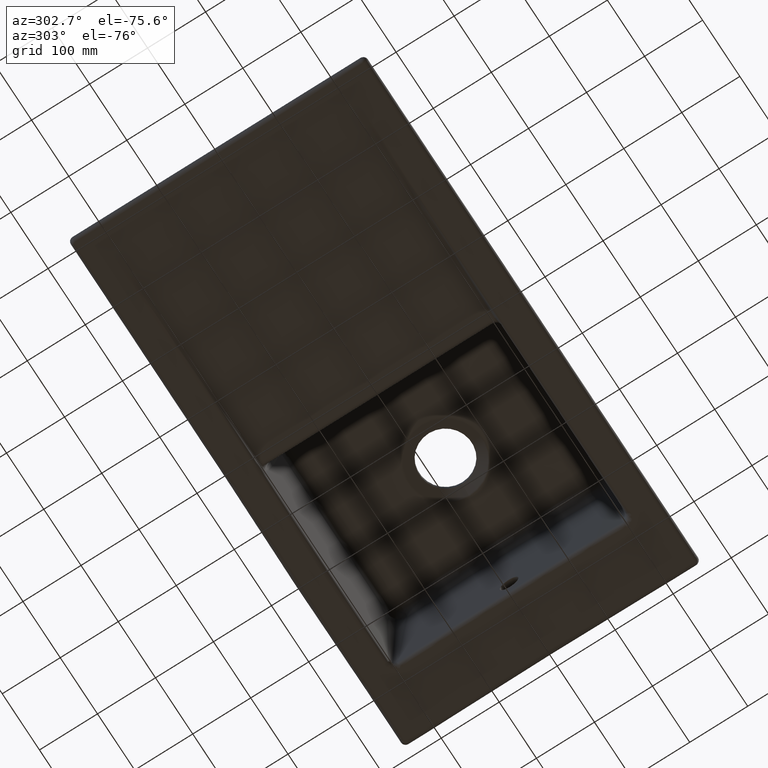
[diagram: clean part render]
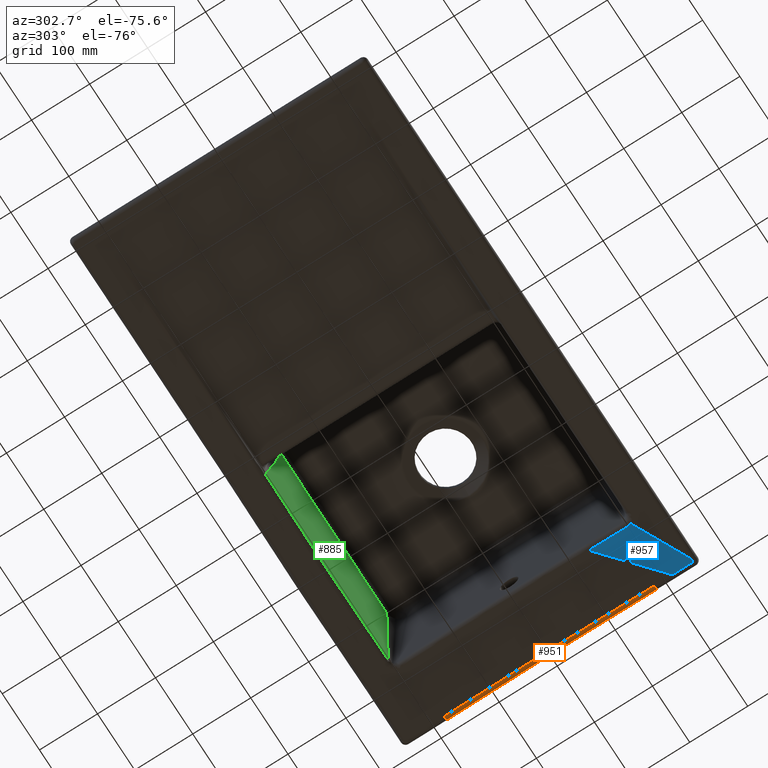
[diagram: same view with three faces highlighted in distinct colors, each labeled with its STEP entity id]
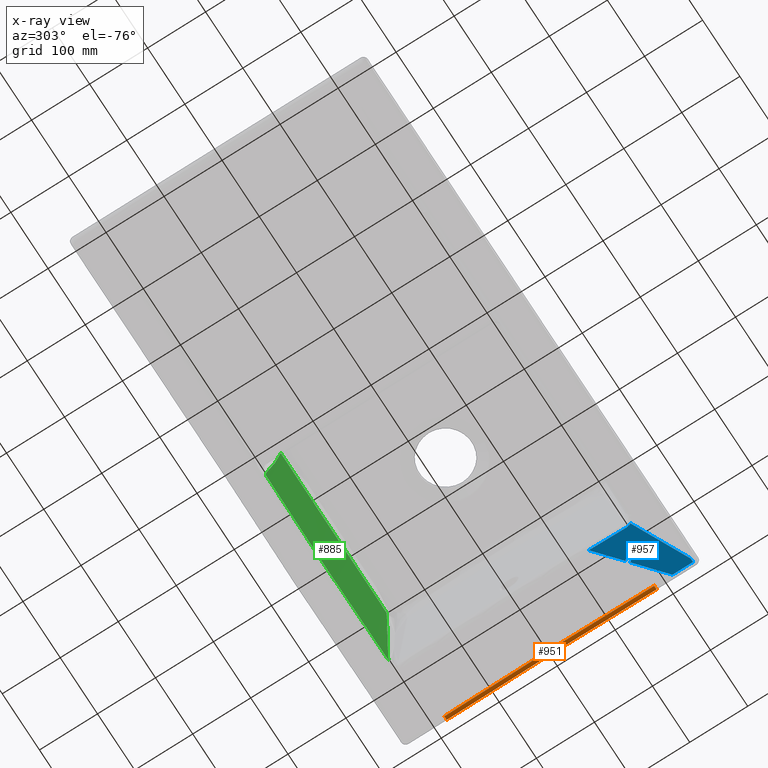
[diagram: x-ray of the same camera — body ghosted, the three highlighted faces saturated]
A machine part, auxiliary view with three faces highlighted in distinct colors.
The next image is the same camera in x-ray (body ghosted, the three faces saturated) — at least one of them is partly hidden behind the body in this view.
Their STEP definitions:

[orange] entity #951 — the highlighted face is a freeform B-spline surface patch.
#220=(
BOUNDED_SURFACE()
B_SPLINE_SURFACE(3,2,((#14011,#14012,#14013),(#14014,#14015,#14016),(#14017,
#14018,#14019),(#14020,#14021,#14022)),.UNSPECIFIED.,.F.,.F.,.F.)
B_SPLINE_SURFACE_WITH_KNOTS((4,4),(3,3),(0.,1.),(0.,1.),.UNSPECIFIED.)
GEOMETRIC_REPRESENTATION_ITEM()
RATIONAL_B_SPLINE_SURFACE(((1.,0.740368760613668,1.),(1.,0.740022202504938,
1.),(1.,0.739262238634342,1.),(1.,0.740366186470878,1.)))
REPRESENTATION_ITEM('')
SURFACE()
);
#951=ADVANCED_FACE('',(#1252),#220,.T.);
#1252=FACE_OUTER_BOUND('',#1534,.T.);
#1534=EDGE_LOOP('',(#2771,#2772,#2773,#2774));
#2771=ORIENTED_EDGE('',*,*,#3828,.F.);
#2772=ORIENTED_EDGE('',*,*,#3843,.T.);
#2773=ORIENTED_EDGE('',*,*,#3844,.F.);
#2774=ORIENTED_EDGE('',*,*,#3841,.F.);
#3203=VERTEX_POINT('',#13739);
#3204=VERTEX_POINT('',#13740);
#3211=VERTEX_POINT('',#13919);
#3212=VERTEX_POINT('',#13942);
#3828=EDGE_CURVE('',#3203,#3204,#4171,.T.);
#3841=EDGE_CURVE('',#3204,#3211,#4181,.T.);
#3843=EDGE_CURVE('',#3203,#3212,#4183,.T.);
#3844=EDGE_CURVE('',#3211,#3212,#4184,.T.);
#4171=B_SPLINE_CURVE_WITH_KNOTS('',3,(#13735,#13736,#13737,#13738),
 .UNSPECIFIED.,.F.,.F.,(4,4),(0.,1.),.UNSPECIFIED.);
#4181=B_SPLINE_CURVE_WITH_KNOTS('',3,(#13913,#13914,#13915,#13916,#13917,
#13918),.UNSPECIFIED.,.F.,.F.,(4,2,4),(0.,0.5,1.),.UNSPECIFIED.);
#4183=B_SPLINE_CURVE_WITH_KNOTS('',3,(#13936,#13937,#13938,#13939,#13940,
#13941),.UNSPECIFIED.,.F.,.F.,(4,2,4),(0.,0.5,1.),.UNSPECIFIED.);
#4184=B_SPLINE_CURVE_WITH_KNOTS('',3,(#13943,#13944,#13945,#13946,#13947,
#13948,#13949,#13950,#13951,#13952,#13953,#13954,#13955,#13956,#13957,#13958,
#13959,#13960,#13961,#13962,#13963,#13964,#13965,#13966,#13967,#13968,#13969,
#13970,#13971,#13972,#13973,#13974,#13975,#13976,#13977,#13978,#13979,#13980,
#13981,#13982,#13983,#13984,#13985,#13986,#13987,#13988,#13989,#13990,#13991,
#13992,#13993,#13994,#13995,#13996,#13997,#13998,#13999,#14000,#14001,#14002,
#14003,#14004,#14005,#14006,#14007,#14008,#14009,#14010),.UNSPECIFIED.,
 .F.,.F.,(4,2,2,1,1,1,1,2,2,2,1,1,1,2,2,2,1,1,1,1,1,2,2,2,2,1,1,1,1,1,2,
2,2,2,1,1,1,2,2,2,1,1,2,2,4),(0.,0.0624999999999981,0.0937499999999973,
0.109374999999997,0.117187499999997,0.121093749999997,0.123046874999997,
0.124023437499997,0.124999999999996,0.187499999999998,0.218749999999998,
0.234374999999999,0.242187499999999,0.246093749999999,0.249999999999999,
0.374999999999999,0.437499999999999,0.468749999999999,0.484374999999999,
0.4921875,0.49609375,0.498046875,0.5,0.625,0.6875,0.71875,0.734375,0.7421875,
0.74609375,0.748046875,0.7490234375,0.75,0.8125,0.843749999999999,0.859374999999999,
0.867187499999999,0.871093749999999,0.873046874999999,0.874999999999999,
0.906249999999999,0.921874999999999,0.929687499999999,0.933593749999999,
0.937499999999999,1.),.UNSPECIFIED.);
#13735=CARTESIAN_POINT('',(286.436388012912,-180.85584415988,7.22728999851359));
#13736=CARTESIAN_POINT('',(284.900206697677,-62.4726737667272,7.26942088201452));
#13737=CARTESIAN_POINT('',(284.843536206371,58.1181804278392,7.26940018537602));
#13738=CARTESIAN_POINT('',(286.436381507599,180.855845687406,7.22722790859812));
#13739=CARTESIAN_POINT('',(286.436255561577,-180.85584148583,7.22603024599582));
#13740=CARTESIAN_POINT('',(286.436254922544,180.855834322087,7.22602504132612));
#13913=CARTESIAN_POINT('',(286.436387511343,180.855805409223,7.22729001229604));
#13914=CARTESIAN_POINT('',(286.230911929114,180.857776536676,5.27224192035089));
#13915=CARTESIAN_POINT('',(285.274983903782,180.869517238858,3.40555645704874));
#13916=CARTESIAN_POINT('',(282.342570367425,180.906638168833,0.786907672548662));
#13917=CARTESIAN_POINT('',(280.380149044262,180.931840360437,0.0475036878816517));
#13918=CARTESIAN_POINT('',(278.414564921222,180.957352312807,0.063792874306785));
#13919=CARTESIAN_POINT('',(278.414568267907,180.957371278451,0.0637928418557141));
#13936=CARTESIAN_POINT('',(286.436388014437,-180.855844277342,7.22728999847175));
#13937=CARTESIAN_POINT('',(286.230912447147,-180.85781522884,5.27224207046015));
#13938=CARTESIAN_POINT('',(285.274984567246,-180.8695557564,3.40555675344717));
#13939=CARTESIAN_POINT('',(282.342571435193,-180.90667642846,0.786908007324678));
#13940=CARTESIAN_POINT('',(280.38015036431,-180.931878538066,0.0475039104058094));
#13941=CARTESIAN_POINT('',(278.414566403864,-180.957390476981,0.0637928525439383));
#13942=CARTESIAN_POINT('',(278.414563569222,-180.957371801252,0.0637928806793564));
#13943=CARTESIAN_POINT('',(278.414567067795,180.957391344472,0.0637928468254679));
#13944=CARTESIAN_POINT('',(278.295598836805,171.819699265149,0.0670467655585575));
#13945=CARTESIAN_POINT('',(278.195994994233,163.480472848046,0.0697702408964209));
#13946=CARTESIAN_POINT('',(278.069064753398,152.170666109597,0.0732383453987869));
#13947=CARTESIAN_POINT('',(278.030513495627,148.60056619399,0.074291124052038));
#13948=CARTESIAN_POINT('',(277.977619872106,143.54530879288,0.0757345478002498));
#13949=CARTESIAN_POINT('',(277.952407591094,141.092652924859,0.0764222914336501));
#13950=CARTESIAN_POINT('',(277.925012326805,138.362450946788,0.0771690577126338));
#13951=CARTESIAN_POINT('',(277.911802749246,137.030160630355,0.0775289949679666));
#13952=CARTESIAN_POINT('',(277.905317911914,136.372218534957,0.0777056581955583));
#13953=CARTESIAN_POINT('',(277.902564181631,136.092001192039,0.0777806686392748));
#13954=CARTESIAN_POINT('',(277.900734000858,135.905580265979,0.0778305201746267));
#13955=CARTESIAN_POINT('',(277.90010729668,135.841710049355,0.0778475903720827));
#13956=CARTESIAN_POINT('',(277.822430379929,127.914001083539,0.0799632444235996));
#13957=CARTESIAN_POINT('',(277.753701894664,120.241077621304,0.0818311571930291));
#13958=CARTESIAN_POINT('',(277.661297846308,108.931285933407,0.0843372119917748));
#13959=CARTESIAN_POINT('',(277.617768416813,103.326288115218,0.0855162755967197));
#13960=CARTESIAN_POINT('',(277.571459701967,96.874521131398,0.0867682045381377));
#13961=CARTESIAN_POINT('',(277.549399411027,93.6704961007411,0.0873639730657317));
#13962=CARTESIAN_POINT('',(277.540176790344,92.3020274490189,0.0876129082885348));
#13963=CARTESIAN_POINT('',(277.534079591514,91.3907562185324,0.0877774526482394));
#13964=CARTESIAN_POINT('',(277.531250004798,90.9649723236633,0.0878538011365197));
#13965=CARTESIAN_POINT('',(277.425949101326,74.9954316212354,0.0906944879080949));
#13966=CARTESIAN_POINT('',(277.350775056883,59.7115993003187,0.0927056534418544));
#13967=CARTESIAN_POINT('',(277.276022198091,37.090754304541,0.0946906754752292));
#13968=CARTESIAN_POINT('',(277.248148001478,25.8565556952222,0.095425253955026));
#13969=CARTESIAN_POINT('',(277.231735155456,12.8838492393069,0.095848643230462));
#13970=CARTESIAN_POINT('',(277.227490451921,6.43101746155797,0.0959540890986234));
#13971=CARTESIAN_POINT('',(277.226350406091,3.21298899314648,0.0959805166884712));
#13972=CARTESIAN_POINT('',(277.226024944857,1.60607249107669,0.0959871897653078));
#13973=CARTESIAN_POINT('',(277.225937758854,0.917843597906485,0.0959886516075324));
#13974=CARTESIAN_POINT('',(277.225891244419,0.459124259012515,0.0959893158836312));
#13975=CARTESIAN_POINT('',(277.225876355853,0.28025282623799,0.095989488028262));
#13976=CARTESIAN_POINT('',(277.224952214648,-17.9001182199949,0.0959912364779008));
#13977=CARTESIAN_POINT('',(277.259290941091,-34.392345131358,0.0950539986691641));
#13978=CARTESIAN_POINT('',(277.340599772674,-57.0138155402283,0.0928568710988572));
#13979=CARTESIAN_POINT('',(277.3727075093,-64.2015086773307,0.091991445200272));
#13980=CARTESIAN_POINT('',(277.425836340863,-74.4534564221397,0.0905607832634023));
#13981=CARTESIAN_POINT('',(277.453646163719,-79.4470336176692,0.0898122205473935));
#13982=CARTESIAN_POINT('',(277.487752927941,-85.041106476566,0.0888943589085475));
#13983=CARTESIAN_POINT('',(277.505159967956,-87.7801929862731,0.0884259184485677));
#13984=CARTESIAN_POINT('',(277.513944252697,-89.1352477736704,0.0881895218226186));
#13985=CARTESIAN_POINT('',(277.518355639713,-89.8091529304571,0.088070804276866));
#13986=CARTESIAN_POINT('',(277.520250257105,-90.0971932199173,0.088019816714858));
#13987=CARTESIAN_POINT('',(277.521514218176,-90.2890475878688,0.0879858011641192));
#13988=CARTESIAN_POINT('',(277.521882972995,-90.3449943108258,0.0879758772783397));
#13989=CARTESIAN_POINT('',(277.580157090214,-99.1621732504791,0.086407603925959));
#13990=CARTESIAN_POINT('',(277.641946611591,-107.273199001037,0.0847434382708441));
#13991=CARTESIAN_POINT('',(277.736638432996,-118.583215587331,0.0821897723736056));
#13992=CARTESIAN_POINT('',(277.768542934845,-122.210470410925,0.0813288175467035));
#13993=CARTESIAN_POINT('',(277.816388168091,-127.43715732894,0.0800366310015491));
#13994=CARTESIAN_POINT('',(277.840308468148,-129.996952231866,0.0793903336074792));
#13995=CARTESIAN_POINT('',(277.86810312324,-132.889657367603,0.0786388257557093));
#13996=CARTESIAN_POINT('',(277.881959267106,-134.312578051042,0.0782640436652711));
#13997=CARTESIAN_POINT('',(277.88788739716,-134.917379946402,0.0781036677238719));
#13998=CARTESIAN_POINT('',(277.891837059859,-135.319465360998,0.0779968089081834));
#13999=CARTESIAN_POINT('',(277.893255329309,-135.463656675258,0.0779584358438439));
#14000=CARTESIAN_POINT('',(277.936225900921,-139.819402109427,0.0767957035635238));
#14001=CARTESIAN_POINT('',(277.976822080326,-143.754133872825,0.0756958569591537));
#14002=CARTESIAN_POINT('',(278.037310563096,-149.408911981321,0.0740549449259007));
#14003=CARTESIAN_POINT('',(278.067454018651,-152.174471721234,0.0732366866406565));
#14004=CARTESIAN_POINT('',(278.102312943623,-155.292734452959,0.0722894585023436));
#14005=CARTESIAN_POINT('',(278.117172687222,-156.605939977315,0.0718854597036818));
#14006=CARTESIAN_POINT('',(278.127059940377,-157.476256160521,0.0716166024997033));
#14007=CARTESIAN_POINT('',(278.131638619632,-157.877804992838,0.0714920771717447));
#14008=CARTESIAN_POINT('',(278.221380911532,-165.715416952639,0.0690508998865024));
#14009=CARTESIAN_POINT('',(278.313303120779,-173.255725160012,0.0665431698637309));
#14010=CARTESIAN_POINT('',(278.414565984987,-180.957358618879,0.0637928639206817));
#14011=CARTESIAN_POINT('',(286.46471813411,183.026006393432,7.22651611569381));
#14012=CARTESIAN_POINT('',(285.705515800824,183.033397351867,0.0028887409232424));
#14013=CARTESIAN_POINT('',(278.442973600485,183.128793699306,0.0630184662418123));
#14014=CARTESIAN_POINT('',(284.871944078498,61.740318019095,7.26984634054429));
#14015=CARTESIAN_POINT('',(284.111632217547,61.6859778156038,0.0431812125488578));
#14016=CARTESIAN_POINT('',(276.845954232343,61.7746691814492,0.106376026884403));
#14017=CARTESIAN_POINT('',(284.862524960809,-59.5687956510438,7.27045432670167));
#14018=CARTESIAN_POINT('',(284.098930269786,-59.3900558040309,0.0278647736401944));
#14019=CARTESIAN_POINT('',(276.818956872441,-59.6019699618359,0.107129710524523));
#14020=CARTESIAN_POINT('',(286.436388014437,-180.855844277342,7.22728999847179));
#14021=CARTESIAN_POINT('',(285.677178824145,-180.863126722211,0.00360703709859165));
#14022=CARTESIAN_POINT('',(278.414566403864,-180.957390476981,0.0637928525439417));

[blue] entity #957 — the highlighted face is a freeform B-spline surface patch.
#226=(
BOUNDED_SURFACE()
B_SPLINE_SURFACE(2,3,((#14138,#14139,#14140,#14141,#14142),(#14143,#14144,
#14145,#14146,#14147),(#14148,#14149,#14150,#14151,#14152)),
 .UNSPECIFIED.,.F.,.F.,.F.)
B_SPLINE_SURFACE_WITH_KNOTS((3,3),(4,1,4),(0.,1.),(0.,0.774440646310953,
1.),.UNSPECIFIED.)
GEOMETRIC_REPRESENTATION_ITEM()
RATIONAL_B_SPLINE_SURFACE(((1.00001286545181,1.00001348020961,1.00001427401841,
1.0000150678272,1.00001521650069),(1.00001286545181,1.00001030752378,1.0000070045876,
1.00000370165142,1.00000308304017),(1.00001286545181,1.00000840391229,1.00000264292912,
0.999996881945948,0.999995802963854)))
REPRESENTATION_ITEM('')
SURFACE()
);
#290=(
BOUNDED_CURVE()
B_SPLINE_CURVE(1,(#14134,#14135),.UNSPECIFIED.,.F.,.F.)
B_SPLINE_CURVE_WITH_KNOTS((2,2),(0.,1.),.UNSPECIFIED.)
CURVE()
GEOMETRIC_REPRESENTATION_ITEM()
RATIONAL_B_SPLINE_CURVE((0.999999480833228,1.00001286545181))
REPRESENTATION_ITEM('')
);
#291=(
BOUNDED_CURVE()
B_SPLINE_CURVE(1,(#14136,#14137),.UNSPECIFIED.,.F.,.F.)
B_SPLINE_CURVE_WITH_KNOTS((2,2),(0.,1.),.UNSPECIFIED.)
CURVE()
GEOMETRIC_REPRESENTATION_ITEM()
RATIONAL_B_SPLINE_CURVE((0.999999480833228,1.00001286545181))
REPRESENTATION_ITEM('')
);
#957=ADVANCED_FACE('',(#1258),#226,.F.);
#1258=FACE_OUTER_BOUND('',#1540,.T.);
#1540=EDGE_LOOP('',(#2795,#2796,#2797,#2798,#2799,#2800,#2801,#2802,#2803));
#2795=ORIENTED_EDGE('',*,*,#3853,.T.);
#2796=ORIENTED_EDGE('',*,*,#3850,.T.);
#2797=ORIENTED_EDGE('',*,*,#3851,.T.);
#2798=ORIENTED_EDGE('',*,*,#3818,.T.);
#2799=ORIENTED_EDGE('',*,*,#3819,.T.);
#2800=ORIENTED_EDGE('',*,*,#3821,.T.);
#2801=ORIENTED_EDGE('',*,*,#3822,.T.);
#2802=ORIENTED_EDGE('',*,*,#3854,.T.);
#2803=ORIENTED_EDGE('',*,*,#3223,.T.);
#2837=VERTEX_POINT('',#5151);
#2838=VERTEX_POINT('',#5152);
#3176=VERTEX_POINT('',#13069);
#3178=VERTEX_POINT('',#13155);
#3193=VERTEX_POINT('',#13333);
#3198=VERTEX_POINT('',#13544);
#3199=VERTEX_POINT('',#13636);
#3214=VERTEX_POINT('',#14052);
#3215=VERTEX_POINT('',#14085);
#3223=EDGE_CURVE('',#2838,#2837,#3866,.T.);
#3818=EDGE_CURVE('',#3193,#3176,#4164,.T.);
#3819=EDGE_CURVE('',#3176,#3178,#4165,.T.);
#3821=EDGE_CURVE('',#3178,#3199,#4166,.T.);
#3822=EDGE_CURVE('',#3199,#3198,#4167,.T.);
#3850=EDGE_CURVE('',#3214,#3215,#4189,.T.);
#3851=EDGE_CURVE('',#3215,#3193,#4190,.T.);
#3853=EDGE_CURVE('',#2837,#3214,#290,.T.);
#3854=EDGE_CURVE('',#3198,#2838,#291,.T.);
#3866=B_SPLINE_CURVE_WITH_KNOTS('',3,(#5153,#5154,#5155,#5156,#5157,#5158,
#5159,#5160,#5161,#5162),.UNSPECIFIED.,.F.,.F.,(4,2,2,2,4),(0.,0.25,0.5,
0.75,1.),.UNSPECIFIED.);
#4164=B_SPLINE_CURVE_WITH_KNOTS('',3,(#13561,#13562,#13563,#13564),
 .UNSPECIFIED.,.F.,.F.,(4,4),(0.,1.),.UNSPECIFIED.);
#4165=B_SPLINE_CURVE_WITH_KNOTS('',3,(#13577,#13578,#13579,#13580,#13581,
#13582,#13583,#13584,#13585,#13586,#13587,#13588,#13589,#13590,#13591,#13592,
#13593,#13594,#13595,#13596,#13597,#13598,#13599,#13600,#13601,#13602,#13603,
#13604,#13605,#13606,#13607,#13608,#13609,#13610,#13611,#13612,#13613,#13614,
#13615,#13616),.UNSPECIFIED.,.F.,.F.,(4,2,1,1,2,2,2,1,1,2,2,2,2,1,1,1,1,
2,2,2,1,1,1,1,2,4),(0.,0.062499999999994,0.093749999999991,0.10937499999999,
0.117187499999989,0.124999999999988,0.187499999999986,0.218749999999984,
0.234374999999985,0.242187499999984,0.249999999999983,0.499999999999967,
0.503906249999967,0.507812499999967,0.515624999999967,0.531249999999968,
0.562499999999969,0.624999999999972,0.749999999999978,0.753906249999978,
0.757812499999978,0.765624999999979,0.781249999999981,0.812499999999983,
0.874999999999989,1.),.UNSPECIFIED.);
#4166=B_SPLINE_CURVE_WITH_KNOTS('',3,(#13637,#13638,#13639,#13640),
 .UNSPECIFIED.,.F.,.F.,(4,4),(0.,1.),.UNSPECIFIED.);
#4167=B_SPLINE_CURVE_WITH_KNOTS('',3,(#13653,#13654,#13655,#13656),
 .UNSPECIFIED.,.F.,.F.,(4,4),(0.,1.),.UNSPECIFIED.);
#4189=B_SPLINE_CURVE_WITH_KNOTS('',3,(#14086,#14087,#14088,#14089),
 .UNSPECIFIED.,.F.,.F.,(4,4),(0.,1.),.UNSPECIFIED.);
#4190=B_SPLINE_CURVE_WITH_KNOTS('',3,(#14102,#14103,#14104,#14105),
 .UNSPECIFIED.,.F.,.F.,(4,4),(0.,1.),.UNSPECIFIED.);
#5151=CARTESIAN_POINT('',(229.97343340318,-170.460255885864,0.322055655296264));
#5152=CARTESIAN_POINT('',(224.930220298799,-166.145707815258,0.350614160647331));
#5153=CARTESIAN_POINT('',(224.930220155191,-166.145707447061,0.350532056431195));
#5154=CARTESIAN_POINT('',(223.503647066353,-166.541660560797,0.351807081941556));
#5155=CARTESIAN_POINT('',(222.413576553851,-167.695867167542,0.348526771763654));
#5156=CARTESIAN_POINT('',(221.775918494402,-170.573233528996,0.336143280056607));
#5157=CARTESIAN_POINT('',(222.266880852178,-172.070889839357,0.328260917529792));
#5158=CARTESIAN_POINT('',(224.534209697896,-174.009516440775,0.316022439434166));
#5159=CARTESIAN_POINT('',(226.086461581195,-174.263010602824,0.31274890796317));
#5160=CARTESIAN_POINT('',(228.835826011516,-173.184152294917,0.312776554719401));
#5161=CARTESIAN_POINT('',(229.802511194653,-171.935841020377,0.315982289288191));
#5162=CARTESIAN_POINT('',(229.973432579468,-170.460253773939,0.32158471739489));
#13069=CARTESIAN_POINT('',(272.712838008443,-247.779131762163,0.00284704276783208));
#13155=CARTESIAN_POINT('',(181.006154954054,-202.543964661022,0.0503232016702477));
#13333=CARTESIAN_POINT('',(278.801958400679,-247.79227601297,0.0051005978130318));
#13544=CARTESIAN_POINT('',(182.373092235017,-129.737475494442,0.594802969373201));
#13561=CARTESIAN_POINT('',(278.796550105754,-247.787267647399,0.00510059781285909));
#13562=CARTESIAN_POINT('',(276.830288755962,-247.784649473116,0.00528894952284771));
#13563=CARTESIAN_POINT('',(274.802384589339,-247.781934416632,0.00455093745285283));
#13564=CARTESIAN_POINT('',(272.712837969162,-247.779131609114,0.0028472564628451));
#13577=CARTESIAN_POINT('',(272.712837839289,-247.7791320494,0.00284725536961098));
#13578=CARTESIAN_POINT('',(270.999742094982,-246.869113936816,0.00348527094014252));
#13579=CARTESIAN_POINT('',(269.208668247256,-245.924827060826,0.00422736856679205));
#13580=CARTESIAN_POINT('',(266.405090280166,-244.457640283575,0.00548494496116881));
#13581=CARTESIAN_POINT('',(264.974059497575,-243.711362679553,0.00614975915282222));
#13582=CARTESIAN_POINT('',(263.25335042594,-242.818701320439,0.00698500355822254));
#13583=CARTESIAN_POINT('',(262.504938002943,-242.431440998257,0.0073553218178196));
#13584=CARTESIAN_POINT('',(262.003559570147,-242.172227725147,0.0076048982553914));
#13585=CARTESIAN_POINT('',(261.717209951177,-242.024324806086,0.00774837861412073));
#13586=CARTESIAN_POINT('',(259.749054279014,-241.008508319626,0.00873943961382332));
#13587=CARTESIAN_POINT('',(257.92474686792,-240.07235766652,0.00969159873810021));
#13588=CARTESIAN_POINT('',(255.076032177632,-238.618842733124,0.0112176626519517));
#13589=CARTESIAN_POINT('',(253.623611439012,-237.879766173032,0.012005098040362));
#13590=CARTESIAN_POINT('',(251.880009633945,-236.99609765831,0.0129639518682251));
#13591=CARTESIAN_POINT('',(251.122227943397,-236.612811933595,0.0133831926773011));
#13592=CARTESIAN_POINT('',(250.614701533177,-236.356274447553,0.0136644967561952));
#13593=CARTESIAN_POINT('',(250.311225181193,-236.202993711553,0.0138330541772036));
#13594=CARTESIAN_POINT('',(243.461814021582,-232.745379491157,0.0176427112819612));
#13595=CARTESIAN_POINT('',(235.751813964907,-228.911384950629,0.0221023323328143));
#13596=CARTESIAN_POINT('',(226.8365085093,-224.548863013273,0.0270654364520088));
#13597=CARTESIAN_POINT('',(226.761398322685,-224.512118432145,0.0271072224682039));
#13598=CARTESIAN_POINT('',(226.548402971007,-224.407929786817,0.0272256849736417));
#13599=CARTESIAN_POINT('',(226.228183313213,-224.25131850582,0.0274036991928556));
#13600=CARTESIAN_POINT('',(225.475917699773,-223.883594718392,0.0278212965314016));
#13601=CARTESIAN_POINT('',(223.951040825467,-223.138963232467,0.0286653128853042));
#13602=CARTESIAN_POINT('',(220.819904489255,-221.613014376071,0.0303877821896804));
#13603=CARTESIAN_POINT('',(217.996560344024,-220.242346346716,0.0319201738173278));
#13604=CARTESIAN_POINT('',(212.163854745498,-217.417961080684,0.0350499253298883));
#13605=CARTESIAN_POINT('',(208.027361265641,-215.424271467518,0.0372236323878557));
#13606=CARTESIAN_POINT('',(203.505828665803,-213.256030787325,0.0395213404512524));
#13607=CARTESIAN_POINT('',(203.43675668279,-213.222913909963,0.0395564001453854));
#13608=CARTESIAN_POINT('',(203.22996684606,-213.123773336021,0.0396613211989359));
#13609=CARTESIAN_POINT('',(202.919080256167,-212.974743009138,0.0398189362489592));
#13610=CARTESIAN_POINT('',(202.188765369547,-212.624769852996,0.0401883298278973));
#13611=CARTESIAN_POINT('',(200.708484222598,-211.915884987907,0.0409335429581296));
#13612=CARTESIAN_POINT('',(197.669316437499,-210.462397006945,0.0424490573629313));
#13613=CARTESIAN_POINT('',(194.929563221007,-209.155446136241,0.0437888987240958));
#13614=CARTESIAN_POINT('',(189.270387150851,-206.46045926,0.0465163895415547));
#13615=CARTESIAN_POINT('',(185.258043584881,-204.555670222817,0.0483987653946823));
#13616=CARTESIAN_POINT('',(181.006140637454,-202.543994347162,0.0503238391488715));
#13636=CARTESIAN_POINT('',(183.182227813901,-193.489400402598,0.139139447473305));
#13637=CARTESIAN_POINT('',(181.006165974876,-202.543944688828,0.0503243970707983));
#13638=CARTESIAN_POINT('',(182.48457541006,-199.768801865221,0.0817482779655459));
#13639=CARTESIAN_POINT('',(183.22993258513,-196.649696743827,0.111913951206289));
#13640=CARTESIAN_POINT('',(183.182227813606,-193.489400402603,0.139139447472317));
#13653=CARTESIAN_POINT('',(183.182227814195,-193.489400402594,0.139139447474294));
#13654=CARTESIAN_POINT('',(182.860902813528,-172.202594861889,0.32252220089136));
#13655=CARTESIAN_POINT('',(182.591140541423,-150.934628953025,0.474596736971396));
#13656=CARTESIAN_POINT('',(182.372944386223,-129.737495950881,0.594803794924173));
#14052=CARTESIAN_POINT('',(278.751786153054,-212.191022109684,0.041603675018802));
#14085=CARTESIAN_POINT('',(278.765837805172,-218.384894655067,0.036402029324253));
#14086=CARTESIAN_POINT('',(278.750980014156,-212.190200961048,0.04160836816271));
#14087=CARTESIAN_POINT('',(278.759065331057,-214.255092670345,0.0399385027137276));
#14088=CARTESIAN_POINT('',(278.764017935288,-216.319791730337,0.0382053415266355));
#14089=CARTESIAN_POINT('',(278.76583781093,-218.384894654341,0.0364020292998615));
#14102=CARTESIAN_POINT('',(278.765837782109,-218.384894654402,0.0364020294249906));
#14103=CARTESIAN_POINT('',(278.774481493524,-228.193418417015,0.0278369210780625));
#14104=CARTESIAN_POINT('',(278.784718894352,-237.994692212547,0.0173858062714853));
#14105=CARTESIAN_POINT('',(278.796550105755,-247.787267647399,0.00510059781285898));
#14134=CARTESIAN_POINT('',(174.49999999999,-123.001873154681,0.639994517596011));
#14135=CARTESIAN_POINT('',(286.000000002102,-218.391849817223,0.));
#14136=CARTESIAN_POINT('',(174.49999999999,-123.001873154681,0.639994517596011));
#14137=CARTESIAN_POINT('',(286.000000002102,-218.391849817223,0.));
#14138=CARTESIAN_POINT('',(286.000000002103,-255.,0.));
#14139=CARTESIAN_POINT('',(248.833287638352,-238.333312841681,0.));
#14140=CARTESIAN_POINT('',(200.841669184759,-216.812407705945,0.));
#14141=CARTESIAN_POINT('',(152.850126922356,-195.291536736662,0.));
#14142=CARTESIAN_POINT('',(142.025222226229,-190.43731938423,0.));
#14143=CARTESIAN_POINT('',(286.000000002103,-236.69592490861,0.));
#14144=CARTESIAN_POINT('',(248.833523472089,-212.464594220203,0.13333074763434));
#14145=CARTESIAN_POINT('',(200.841860672359,-181.175595096282,0.305495689773416));
#14146=CARTESIAN_POINT('',(152.849880847004,-149.886389281992,0.477661769207916));
#14147=CARTESIAN_POINT('',(142.02481071595,-142.828804553533,0.516495464301914));
#14148=CARTESIAN_POINT('',(286.000000002103,-218.391849817223,0.));
#14149=CARTESIAN_POINT('',(248.83366497305,-186.595474651426,0.213329602307442));
#14150=CARTESIAN_POINT('',(200.841975566255,-145.537841176777,0.488795235580419));
#14151=CARTESIAN_POINT('',(152.849733199107,-104.479734635983,0.764264042769046));
#14152=CARTESIAN_POINT('',(142.024563804653,-95.2186345831981,0.826399011956197));

[green] entity #885 — the highlighted conical surface has half-angle 5 deg.
#284=(
BOUNDED_CURVE()
B_SPLINE_CURVE(3,(#11903,#11904,#11905,#11906),.UNSPECIFIED.,.F.,.F.)
B_SPLINE_CURVE_WITH_KNOTS((4,4),(0.,1.),.UNSPECIFIED.)
CURVE()
GEOMETRIC_REPRESENTATION_ITEM()
RATIONAL_B_SPLINE_CURVE((0.999999999808126,0.999999999808126,0.999999999808126,
0.999999999808126))
REPRESENTATION_ITEM('')
);
#391=LINE('',#10923,#481);
#481=VECTOR('',#4881,1.);
#529=CONICAL_SURFACE('',#4412,10326.0833333221,5.);
#885=ADVANCED_FACE('',(#1189),#529,.F.);
#1189=FACE_OUTER_BOUND('',#1465,.T.);
#1465=EDGE_LOOP('',(#2434,#2435,#2436,#2437,#2438,#2439));
#2434=ORIENTED_EDGE('',*,*,#3602,.T.);
#2435=ORIENTED_EDGE('',*,*,#3606,.T.);
#2436=ORIENTED_EDGE('',*,*,#3610,.T.);
#2437=ORIENTED_EDGE('',*,*,#3688,.F.);
#2438=ORIENTED_EDGE('',*,*,#3689,.F.);
#2439=ORIENTED_EDGE('',*,*,#3609,.T.);
#3070=VERTEX_POINT('',#10593);
#3072=VERTEX_POINT('',#10617);
#3075=VERTEX_POINT('',#10717);
#3077=VERTEX_POINT('',#10846);
#3078=VERTEX_POINT('',#10924);
#3124=VERTEX_POINT('',#11907);
#3602=EDGE_CURVE('',#3070,#3072,#4032,.T.);
#3606=EDGE_CURVE('',#3072,#3075,#4035,.T.);
#3609=EDGE_CURVE('',#3077,#3070,#4037,.T.);
#3610=EDGE_CURVE('',#3075,#3078,#391,.T.);
#3688=EDGE_CURVE('',#3124,#3078,#284,.T.);
#3689=EDGE_CURVE('',#3077,#3124,#4081,.T.);
#4032=B_SPLINE_CURVE_WITH_KNOTS('',3,(#10618,#10619,#10620,#10621,#10622,
#10623,#10624,#10625,#10626,#10627,#10628,#10629,#10630,#10631,#10632,#10633,
#10634,#10635,#10636,#10637,#10638,#10639),.UNSPECIFIED.,.F.,.F.,(4,2,1,
1,1,1,2,2,1,1,1,1,2,2,4),(0.,0.250000000000001,0.375000000000001,0.437500000000001,
0.468750000000001,0.484375000000001,0.492187500000001,0.500000000000001,
0.625000000000001,0.6875,0.71875,0.734375,0.7421875,0.75,1.),
 .UNSPECIFIED.);
#4035=B_SPLINE_CURVE_WITH_KNOTS('',3,(#10718,#10719,#10720,#10721,#10722,
#10723),.UNSPECIFIED.,.F.,.F.,(4,2,4),(0.,0.5,1.),.UNSPECIFIED.);
#4037=B_SPLINE_CURVE_WITH_KNOTS('',3,(#10887,#10888,#10889,#10890,#10891,
#10892,#10893,#10894,#10895,#10896,#10897,#10898),.UNSPECIFIED.,.F.,.F.,
(4,2,2,2,2,4),(0.,0.25,0.375,0.4375,0.5,1.),.UNSPECIFIED.);
#4081=B_SPLINE_CURVE_WITH_KNOTS('',3,(#11908,#11909,#11910,#11911),
 .UNSPECIFIED.,.F.,.F.,(4,4),(0.,1.),.UNSPECIFIED.);
#4412=AXIS2_PLACEMENT_3D('',#11912,#4961,#4962);
#4881=DIRECTION('',(-0.00138518029164651,0.0871447346054573,-0.996194698091746));
#4961=DIRECTION('',(0.,0.,-1.));
#4962=DIRECTION('',(-1.,0.,0.));
#10593=CARTESIAN_POINT('',(-145.23239856141,190.758894455335,168.229965646769));
#10617=CARTESIAN_POINT('',(-163.791278626244,203.339391863574,21.2752004239752));
#10618=CARTESIAN_POINT('',(-145.233421623206,190.758942013513,168.229979458093));
#10619=CARTESIAN_POINT('',(-145.951181074645,191.714158576187,157.197335201124));
#10620=CARTESIAN_POINT('',(-146.925045655094,192.71528093778,145.598090929434));
#10621=CARTESIAN_POINT('',(-148.770396943086,194.285496651939,127.349324499815));
#10622=CARTESIAN_POINT('',(-149.789212186346,195.08773486591,118.012466279484));
#10623=CARTESIAN_POINT('',(-151.146171539824,196.053557747133,106.747633762771));
#10624=CARTESIAN_POINT('',(-151.86674954794,196.543924163507,101.022259689499));
#10625=CARTESIAN_POINT('',(-152.237564773773,196.790969231725,98.1363331991339));
#10626=CARTESIAN_POINT('',(-152.398741381656,196.897244451535,96.8945276774642));
#10627=CARTESIAN_POINT('',(-152.506693761651,196.968183188382,96.0655506890307));
#10628=CARTESIAN_POINT('',(-152.567126883688,197.007747744021,95.6031627487457));
#10629=CARTESIAN_POINT('',(-153.387737794305,197.543367676939,89.3429295935507));
#10630=CARTESIAN_POINT('',(-154.62517931743,198.316769468481,80.2932108836329));
#10631=CARTESIAN_POINT('',(-156.207076971818,199.249128962382,69.3646563631289));
#10632=CARTESIAN_POINT('',(-157.03259101673,199.72280920228,63.8077417631437));
#10633=CARTESIAN_POINT('',(-157.45399076733,199.961522673386,61.0061251282178));
#10634=CARTESIAN_POINT('',(-157.636442828011,200.064229685093,59.8004695700495));
#10635=CARTESIAN_POINT('',(-157.758489145187,200.132790168514,58.9955963724644));
#10636=CARTESIAN_POINT('',(-157.826720005841,200.171032156993,58.5466158201273));
#10637=CARTESIAN_POINT('',(-159.62300505416,201.1759546722,46.7475686660263));
#10638=CARTESIAN_POINT('',(-161.593616999774,202.22202149691,34.4429477278448));
#10639=CARTESIAN_POINT('',(-163.793324210722,203.339291969831,21.275206122125));
#10717=CARTESIAN_POINT('',(-164.085512576289,203.396665959109,20.5664679534347));
#10718=CARTESIAN_POINT('',(-163.789229757089,203.33935860782,21.2751870100526));
#10719=CARTESIAN_POINT('',(-163.789657249458,203.346197526735,21.1969501284001));
#10720=CARTESIAN_POINT('',(-163.866187530114,203.359422544909,21.0319275831542));
#10721=CARTESIAN_POINT('',(-163.979793178629,203.377968402891,20.7993569932567));
#10722=CARTESIAN_POINT('',(-164.033967260227,203.3872918974,20.6829655519162));
#10723=CARTESIAN_POINT('',(-164.085512578226,203.396666081593,20.566467964184));
#10846=CARTESIAN_POINT('',(139.425609536834,190.813813771889,168.519157310449));
#10887=CARTESIAN_POINT('',(139.42560952193,190.813813770154,168.519157307016));
#10888=CARTESIAN_POINT('',(112.708943852291,191.06007434413,169.8337673991));
#10889=CARTESIAN_POINT('',(87.4921475994032,191.211877487324,170.812964081431));
#10890=CARTESIAN_POINT('',(51.917126419217,191.347430876974,171.778638990302));
#10891=CARTESIAN_POINT('',(40.4338089116853,191.377195341037,172.016677274154));
#10892=CARTESIAN_POINT('',(23.7713680519275,191.404350854925,172.247954671275));
#10893=CARTESIAN_POINT('',(18.3109767330947,191.410483655191,172.304083798872));
#10894=CARTESIAN_POINT('',(7.57770269179592,191.417804896661,172.374415377848));
#10895=CARTESIAN_POINT('',(2.25769389155424,191.41898558306,172.388556310403));
#10896=CARTESIAN_POINT('',(-43.9303465852709,191.411385202871,172.328261999238));
#10897=CARTESIAN_POINT('',(-91.3833004926873,191.279984413033,170.944283444607));
#10898=CARTESIAN_POINT('',(-145.232243507301,190.758963699158,168.229921278603));
#10923=CARTESIAN_POINT('',(-164.114109664866,205.195771613822,0.));
#10924=CARTESIAN_POINT('',(-164.103955393813,204.556944118708,7.30275405056718));
#11903=CARTESIAN_POINT('',(164.848471439754,204.5450830581,7.30275405408649));
#11904=CARTESIAN_POINT('',(55.1988622499487,206.295891428364,7.30275407824158));
#11905=CARTESIAN_POINT('',(-54.4519679390899,206.299881000513,7.30275404577431));
#11906=CARTESIAN_POINT('',(-164.103955393808,204.556944118403,7.30275405408662));
#11907=CARTESIAN_POINT('',(164.848471328137,204.545083059795,7.30275405873489));
#11908=CARTESIAN_POINT('',(139.425609522524,190.813813776058,168.519157307581));
#11909=CARTESIAN_POINT('',(147.901552287104,195.401130046249,114.780709073797));
#11910=CARTESIAN_POINT('',(156.375830858867,199.978202333449,61.0419065970752));
#11911=CARTESIAN_POINT('',(164.848471305412,204.545083060708,7.30275405607911));
#11912=CARTESIAN_POINT('',(6.02182823036656E-11,-10119.5833333221,0.));